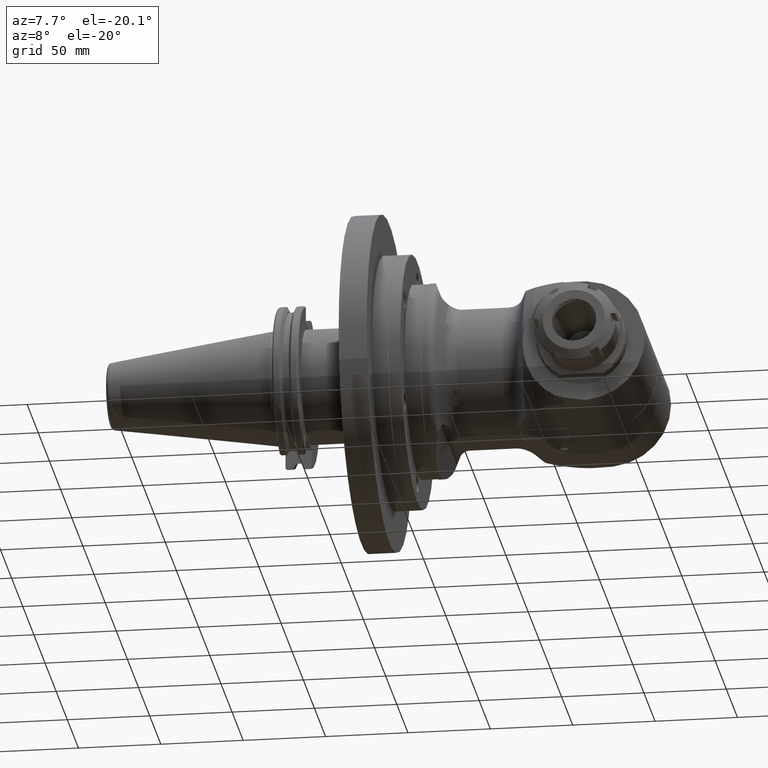
[diagram: clean part render]
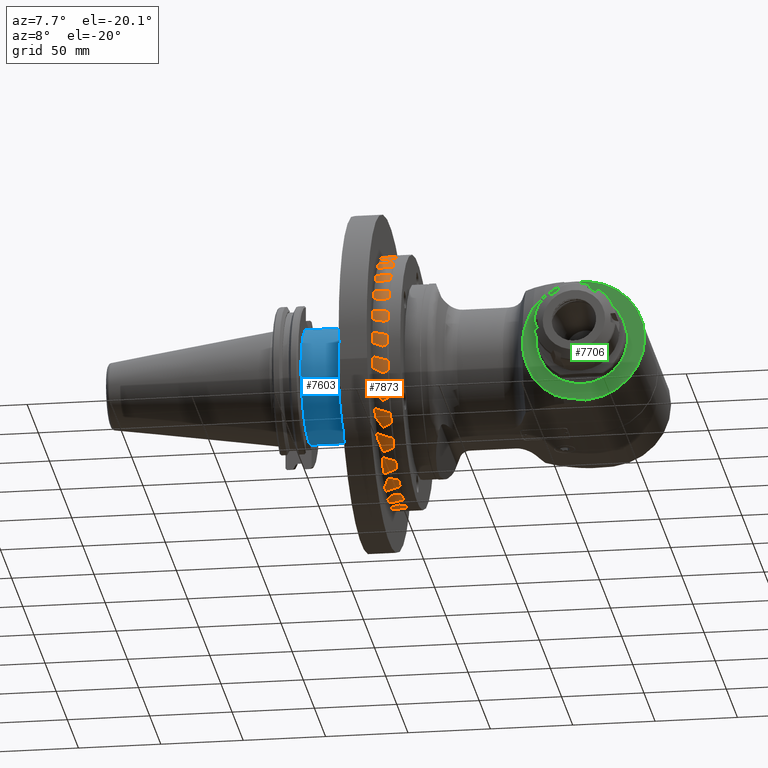
[diagram: same view with three faces highlighted in distinct colors, each labeled with its STEP entity id]
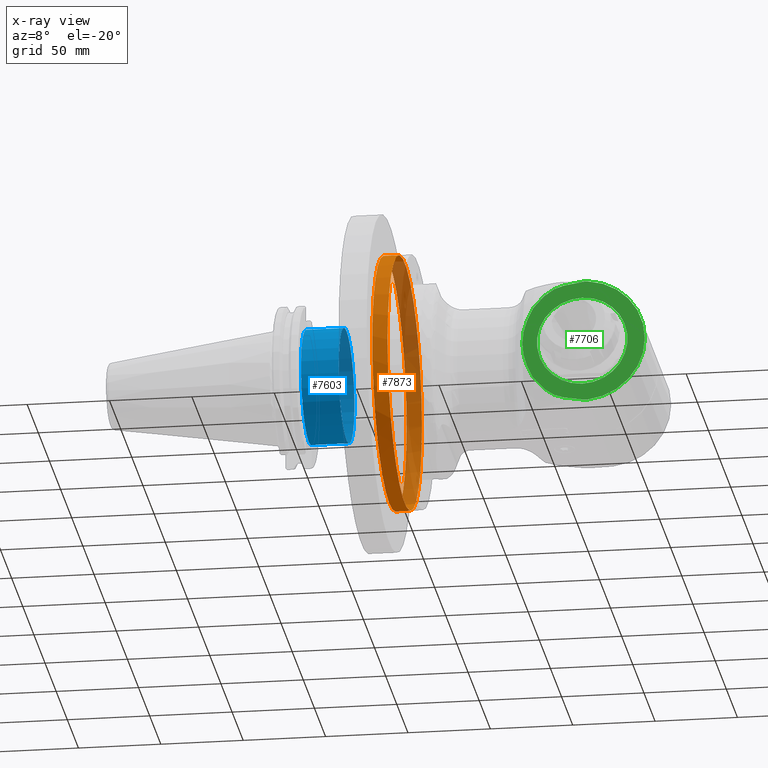
[diagram: x-ray of the same camera — body ghosted, the three highlighted faces saturated]
A machine part, auxiliary view with three faces highlighted in distinct colors.
The next image is the same camera in x-ray (body ghosted, the three faces saturated) — at least one of them is partly hidden behind the body in this view.
Their STEP definitions:

[orange] entity #7873 — the highlighted cylindrical surface (bore or boss wall) has radius 77 mm, axis along (-1, -0, 0).
#314=CYLINDRICAL_SURFACE('',#8676,77.);
#731=FACE_OUTER_BOUND('',#1194,.T.);
#1194=EDGE_LOOP('',(#6990,#6991,#6992,#6993,#6994,#6995,#6996,#6997));
#1603=CIRCLE('',#8675,77.);
#1604=CIRCLE('',#8677,77.);
#1605=CIRCLE('',#8678,77.);
#1606=CIRCLE('',#8679,77.);
#1607=CIRCLE('',#8680,77.);
#1608=CIRCLE('',#8681,77.);
#2187=LINE('',#13725,#2796);
#2796=VECTOR('',#10643,77.);
#3741=VERTEX_POINT('',#13711);
#3742=VERTEX_POINT('',#13715);
#3743=VERTEX_POINT('',#13716);
#3744=VERTEX_POINT('',#13718);
#3745=VERTEX_POINT('',#13720);
#3746=VERTEX_POINT('',#13722);
#4846=EDGE_CURVE('',#3741,#3741,#1603,.T.);
#4848=EDGE_CURVE('',#3742,#3743,#1604,.T.);
#4849=EDGE_CURVE('',#3744,#3742,#1605,.T.);
#4850=EDGE_CURVE('',#3745,#3744,#1606,.T.);
#4851=EDGE_CURVE('',#3746,#3745,#1607,.T.);
#4852=EDGE_CURVE('',#3743,#3746,#1608,.T.);
#4853=EDGE_CURVE('',#3743,#3741,#2187,.T.);
#6990=ORIENTED_EDGE('',*,*,#4848,.F.);
#6991=ORIENTED_EDGE('',*,*,#4849,.F.);
#6992=ORIENTED_EDGE('',*,*,#4850,.F.);
#6993=ORIENTED_EDGE('',*,*,#4851,.F.);
#6994=ORIENTED_EDGE('',*,*,#4852,.F.);
#6995=ORIENTED_EDGE('',*,*,#4853,.T.);
#6996=ORIENTED_EDGE('',*,*,#4846,.F.);
#6997=ORIENTED_EDGE('',*,*,#4853,.F.);
#7873=ADVANCED_FACE('',(#731),#314,.T.);
#8675=AXIS2_PLACEMENT_3D('',#13712,#10628,#10629);
#8676=AXIS2_PLACEMENT_3D('',#13714,#10631,#10632);
#8677=AXIS2_PLACEMENT_3D('',#13717,#10633,#10634);
#8678=AXIS2_PLACEMENT_3D('',#13719,#10635,#10636);
#8679=AXIS2_PLACEMENT_3D('',#13721,#10637,#10638);
#8680=AXIS2_PLACEMENT_3D('',#13723,#10639,#10640);
#8681=AXIS2_PLACEMENT_3D('',#13724,#10641,#10642);
#10628=DIRECTION('center_axis',(1.,0.,0.));
#10629=DIRECTION('ref_axis',(0.,-1.,0.));
#10631=DIRECTION('center_axis',(-1.,0.,0.));
#10632=DIRECTION('ref_axis',(0.,-1.,0.));
#10633=DIRECTION('center_axis',(-1.,0.,0.));
#10634=DIRECTION('ref_axis',(0.,0.0347372650101887,0.999396479091062));
#10635=DIRECTION('center_axis',(-1.,0.,0.));
#10636=DIRECTION('ref_axis',(0.,-0.999396479482274,0.0347372537549791));
#10637=DIRECTION('center_axis',(-1.,0.,0.));
#10638=DIRECTION('ref_axis',(0.,-0.0347372649181487,-0.999396479094261));
#10639=DIRECTION('center_axis',(-1.,0.,0.));
#10640=DIRECTION('ref_axis',(0.,0.999396479482857,-0.0347372537381985));
#10641=DIRECTION('center_axis',(-1.,0.,0.));
#10642=DIRECTION('ref_axis',(0.,0.0347372650101887,0.999396479091062));
#10643=DIRECTION('',(1.,0.,0.));
#13711=CARTESIAN_POINT('',(-115.7,77.,0.));
#13712=CARTESIAN_POINT('Origin',(-115.7,0.,0.));
#13714=CARTESIAN_POINT('Origin',(-120.1,0.,0.));
#13715=CARTESIAN_POINT('',(-125.,2.6756290044641,76.9534990070314));
#13716=CARTESIAN_POINT('',(-125.,77.,-9.42978035343462E-15));
#13717=CARTESIAN_POINT('Origin',(-125.,0.,0.));
#13718=CARTESIAN_POINT('',(-125.,-76.9534991392753,2.67562520351727));
#13719=CARTESIAN_POINT('Origin',(-125.,0.,0.));
#13720=CARTESIAN_POINT('',(-125.,-2.6756290023631,-76.9534990071051));
#13721=CARTESIAN_POINT('Origin',(-125.,0.,0.));
#13722=CARTESIAN_POINT('',(-125.,76.9534991390136,-2.67562521103966));
#13723=CARTESIAN_POINT('Origin',(-125.,0.,0.));
#13724=CARTESIAN_POINT('Origin',(-125.,0.,0.));
#13725=CARTESIAN_POINT('',(-120.1,77.,-9.42978035343462E-15));

[blue] entity #7603 — the highlighted cylindrical surface (bore or boss wall) has radius 34.925 mm, axis along (1, 0, 0).
#251=CYLINDRICAL_SURFACE('',#8136,34.925);
#461=FACE_OUTER_BOUND('',#868,.T.);
#868=EDGE_LOOP('',(#5251,#5252,#5253,#5254));
#1325=CIRCLE('',#8061,34.925);
#1367=CIRCLE('',#8137,34.925);
#1715=LINE('',#11295,#2324);
#2324=VECTOR('',#9083,34.925);
#3040=VERTEX_POINT('',#11118);
#3086=VERTEX_POINT('',#11293);
#3899=EDGE_CURVE('',#3040,#3040,#1325,.T.);
#3973=EDGE_CURVE('',#3086,#3086,#1367,.T.);
#3974=EDGE_CURVE('',#3086,#3040,#1715,.T.);
#5251=ORIENTED_EDGE('',*,*,#3973,.F.);
#5252=ORIENTED_EDGE('',*,*,#3974,.T.);
#5253=ORIENTED_EDGE('',*,*,#3899,.F.);
#5254=ORIENTED_EDGE('',*,*,#3974,.F.);
#7603=ADVANCED_FACE('',(#461),#251,.T.);
#8061=AXIS2_PLACEMENT_3D('',#11119,#8902,#8903);
#8136=AXIS2_PLACEMENT_3D('',#11292,#9079,#9080);
#8137=AXIS2_PLACEMENT_3D('',#11294,#9081,#9082);
#8902=DIRECTION('center_axis',(-1.,0.,0.));
#8903=DIRECTION('ref_axis',(0.,0.,1.));
#9079=DIRECTION('center_axis',(1.,0.,0.));
#9080=DIRECTION('ref_axis',(0.,0.,1.));
#9081=DIRECTION('center_axis',(1.,0.,0.));
#9082=DIRECTION('ref_axis',(0.,0.,-1.));
#9083=DIRECTION('',(-1.,0.,0.));
#11118=CARTESIAN_POINT('',(19.05,0.,-34.925));
#11119=CARTESIAN_POINT('Origin',(19.05,0.,0.));
#11292=CARTESIAN_POINT('Origin',(32.,0.,0.));
#11293=CARTESIAN_POINT('',(42.,0.,-34.925));
#11294=CARTESIAN_POINT('Origin',(42.,0.,0.));
#11295=CARTESIAN_POINT('',(32.,4.27707894602213E-15,-34.925));

[green] entity #7706 — the highlighted planar face has unit normal (-0, 1, 0).
#166=FACE_BOUND('',#983,.T.);
#564=FACE_OUTER_BOUND('',#982,.T.);
#982=EDGE_LOOP('',(#5774,#5775,#5776,#5777,#5778,#5779,#5780,#5781,#5782,
#5783,#5784,#5785,#5786));
#983=EDGE_LOOP('',(#5787));
#1454=CIRCLE('',#8301,38.);
#1474=CIRCLE('',#8352,27.5);
#1789=LINE('',#12059,#2398);
#1799=LINE('',#12099,#2408);
#2398=VECTOR('',#9455,10.);
#2408=VECTOR('',#9497,10.);
#2925=(
BOUNDED_CURVE()
B_SPLINE_CURVE(2,(#12023,#12024,#12025),.UNSPECIFIED.,.F.,.F.)
B_SPLINE_CURVE_WITH_KNOTS((3,3),(7.66377423123892,11.5955866176865),
 .UNSPECIFIED.)
CURVE()
GEOMETRIC_REPRESENTATION_ITEM()
RATIONAL_B_SPLINE_CURVE((1.35306260130723,1.39892913016397,1.39892913016397))
REPRESENTATION_ITEM('')
);
#2926=(
BOUNDED_CURVE()
B_SPLINE_CURVE(2,(#12029,#12030,#12031),.UNSPECIFIED.,.F.,.F.)
B_SPLINE_CURVE_WITH_KNOTS((3,3),(6.33402983461404,7.66823083171025),
 .UNSPECIFIED.)
CURVE()
GEOMETRIC_REPRESENTATION_ITEM()
RATIONAL_B_SPLINE_CURVE((1.04614733757321,1.04271820737112,1.03579692834844))
REPRESENTATION_ITEM('')
);
#2927=(
BOUNDED_CURVE()
B_SPLINE_CURVE(2,(#12035,#12036,#12037),.UNSPECIFIED.,.F.,.F.)
B_SPLINE_CURVE_WITH_KNOTS((3,3),(5.31658742413015,6.20123731357054),
 .UNSPECIFIED.)
CURVE()
GEOMETRIC_REPRESENTATION_ITEM()
RATIONAL_B_SPLINE_CURVE((1.02507283341865,1.02410105275046,1.02211168134373))
REPRESENTATION_ITEM('')
);
#2928=(
BOUNDED_CURVE()
B_SPLINE_CURVE(2,(#12041,#12042,#12043),.UNSPECIFIED.,.F.,.F.)
B_SPLINE_CURVE_WITH_KNOTS((3,3),(4.66535243178527,5.31813125282803),
 .UNSPECIFIED.)
CURVE()
GEOMETRIC_REPRESENTATION_ITEM()
RATIONAL_B_SPLINE_CURVE((1.00767575282678,1.00746954792995,1.00705536430051))
REPRESENTATION_ITEM('')
);
#2929=(
BOUNDED_CURVE()
B_SPLINE_CURVE(2,(#12047,#12048,#12049),.UNSPECIFIED.,.F.,.F.)
B_SPLINE_CURVE_WITH_KNOTS((3,3),(3.43445392875505,4.800957783181),
 .UNSPECIFIED.)
CURVE()
GEOMETRIC_REPRESENTATION_ITEM()
RATIONAL_B_SPLINE_CURVE((1.00197720157034,1.0020564521463,1.00188575798696))
REPRESENTATION_ITEM('')
);
#2943=(
BOUNDED_CURVE()
B_SPLINE_CURVE(2,(#12206,#12207,#12208),.UNSPECIFIED.,.F.,.F.)
B_SPLINE_CURVE_WITH_KNOTS((3,3),(2.93451137545031,4.30101522987674),
 .UNSPECIFIED.)
CURVE()
GEOMETRIC_REPRESENTATION_ITEM()
RATIONAL_B_SPLINE_CURVE((1.00188575798696,1.0020564521463,1.00197720157034))
REPRESENTATION_ITEM('')
);
#2944=(
BOUNDED_CURVE()
B_SPLINE_CURVE(2,(#12212,#12213,#12214),.UNSPECIFIED.,.F.,.F.)
B_SPLINE_CURVE_WITH_KNOTS((3,3),(2.71815097666377,3.37092979770638),
 .UNSPECIFIED.)
CURVE()
GEOMETRIC_REPRESENTATION_ITEM()
RATIONAL_B_SPLINE_CURVE((1.00705536430051,1.00746954792995,1.00767575282678))
REPRESENTATION_ITEM('')
);
#2945=(
BOUNDED_CURVE()
B_SPLINE_CURVE(2,(#12218,#12219,#12220),.UNSPECIFIED.,.F.,.F.)
B_SPLINE_CURVE_WITH_KNOTS((3,3),(2.74228838967073,3.62693827911546),
 .UNSPECIFIED.)
CURVE()
GEOMETRIC_REPRESENTATION_ITEM()
RATIONAL_B_SPLINE_CURVE((1.02211168134371,1.02410105275046,1.02507283341865))
REPRESENTATION_ITEM('')
);
#2946=(
BOUNDED_CURVE()
B_SPLINE_CURVE(2,(#12224,#12225,#12226),.UNSPECIFIED.,.F.,.F.)
B_SPLINE_CURVE_WITH_KNOTS((3,3),(2.3795802915178,3.71378128861126),
 .UNSPECIFIED.)
CURVE()
GEOMETRIC_REPRESENTATION_ITEM()
RATIONAL_B_SPLINE_CURVE((1.03579692834844,1.04271820737111,1.0461473375732))
REPRESENTATION_ITEM('')
);
#2947=(
BOUNDED_CURVE()
B_SPLINE_CURVE(2,(#12229,#12230,#12231),.UNSPECIFIED.,.F.,.F.)
B_SPLINE_CURVE_WITH_KNOTS((3,3),(11.5955866176865,15.527399004134),
 .UNSPECIFIED.)
CURVE()
GEOMETRIC_REPRESENTATION_ITEM()
RATIONAL_B_SPLINE_CURVE((1.39892913016397,1.39892913016397,1.35306260130723))
REPRESENTATION_ITEM('')
);
#3238=VERTEX_POINT('',#12018);
#3239=VERTEX_POINT('',#12022);
#3240=VERTEX_POINT('',#12028);
#3241=VERTEX_POINT('',#12034);
#3242=VERTEX_POINT('',#12040);
#3243=VERTEX_POINT('',#12046);
#3245=VERTEX_POINT('',#12058);
#3254=VERTEX_POINT('',#12089);
#3256=VERTEX_POINT('',#12098);
#3273=VERTEX_POINT('',#12205);
#3274=VERTEX_POINT('',#12211);
#3275=VERTEX_POINT('',#12217);
#3276=VERTEX_POINT('',#12223);
#3277=VERTEX_POINT('',#12233);
#4176=EDGE_CURVE('',#3239,#3238,#2925,.T.);
#4178=EDGE_CURVE('',#3240,#3239,#2926,.T.);
#4180=EDGE_CURVE('',#3241,#3240,#2927,.T.);
#4182=EDGE_CURVE('',#3242,#3241,#2928,.T.);
#4184=EDGE_CURVE('',#3243,#3242,#2929,.T.);
#4187=EDGE_CURVE('',#3245,#3243,#1789,.T.);
#4203=EDGE_CURVE('',#3254,#3245,#1454,.T.);
#4207=EDGE_CURVE('',#3256,#3254,#1799,.T.);
#4248=EDGE_CURVE('',#3273,#3256,#2943,.T.);
#4250=EDGE_CURVE('',#3274,#3273,#2944,.T.);
#4252=EDGE_CURVE('',#3275,#3274,#2945,.T.);
#4254=EDGE_CURVE('',#3276,#3275,#2946,.T.);
#4256=EDGE_CURVE('',#3238,#3276,#2947,.T.);
#4257=EDGE_CURVE('',#3277,#3277,#1474,.T.);
#5774=ORIENTED_EDGE('',*,*,#4252,.T.);
#5775=ORIENTED_EDGE('',*,*,#4250,.T.);
#5776=ORIENTED_EDGE('',*,*,#4248,.T.);
#5777=ORIENTED_EDGE('',*,*,#4207,.T.);
#5778=ORIENTED_EDGE('',*,*,#4203,.T.);
#5779=ORIENTED_EDGE('',*,*,#4187,.T.);
#5780=ORIENTED_EDGE('',*,*,#4184,.T.);
#5781=ORIENTED_EDGE('',*,*,#4182,.T.);
#5782=ORIENTED_EDGE('',*,*,#4180,.T.);
#5783=ORIENTED_EDGE('',*,*,#4178,.T.);
#5784=ORIENTED_EDGE('',*,*,#4176,.T.);
#5785=ORIENTED_EDGE('',*,*,#4256,.T.);
#5786=ORIENTED_EDGE('',*,*,#4254,.T.);
#5787=ORIENTED_EDGE('',*,*,#4257,.T.);
#7422=PLANE('',#8351);
#7706=ADVANCED_FACE('',(#564,#166),#7422,.F.);
#8301=AXIS2_PLACEMENT_3D('',#12090,#9491,#9492);
#8351=AXIS2_PLACEMENT_3D('',#12232,#9607,#9608);
#8352=AXIS2_PLACEMENT_3D('',#12234,#9609,#9610);
#9455=DIRECTION('',(-0.996194698091745,0.,0.0871557427476639));
#9491=DIRECTION('center_axis',(0.,-1.,0.));
#9492=DIRECTION('ref_axis',(1.,0.,0.));
#9497=DIRECTION('',(0.996194698091745,0.,0.0871557427476639));
#9607=DIRECTION('center_axis',(0.,1.,0.));
#9608=DIRECTION('ref_axis',(0.,0.,-1.));
#9609=DIRECTION('center_axis',(0.,1.,0.));
#9610=DIRECTION('ref_axis',(0.,0.,1.));
#12018=CARTESIAN_POINT('',(-36.33356727372,-59.,5.109128986719E-14));
#12022=CARTESIAN_POINT('',(-29.93222915756,-59.,22.09072203437));
#12023=CARTESIAN_POINT('Ctrl Pts',(-29.9322291577152,-59.,22.0907220340942));
#12024=CARTESIAN_POINT('Ctrl Pts',(-36.3335672737221,-59.,10.6832180328903));
#12025=CARTESIAN_POINT('Ctrl Pts',(-36.3335672737221,-59.,2.53959518191181E-14));
#12028=CARTESIAN_POINT('',(-23.1941141656069,-58.9999992310959,29.5804042855511));
#12029=CARTESIAN_POINT('Ctrl Pts',(-23.1941138002888,-59.,29.5804039178051));
#12030=CARTESIAN_POINT('Ctrl Pts',(-27.0515132712685,-59.,25.748473588291));
#12031=CARTESIAN_POINT('Ctrl Pts',(-29.9322291575599,-59.,22.0907220343699));
#12034=CARTESIAN_POINT('',(-17.0387513415083,-58.9999999586063,33.8082832713514));
#12035=CARTESIAN_POINT('Ctrl Pts',(-17.0387513469458,-59.,33.8082832796718));
#12036=CARTESIAN_POINT('Ctrl Pts',(-20.3217046407363,-59.,31.6627930677825));
#12037=CARTESIAN_POINT('Ctrl Pts',(-23.1941098618538,-59.,29.5804054213108));
#12040=CARTESIAN_POINT('',(-11.3674698918687,-58.9999999973162,35.7770876557377));
#12041=CARTESIAN_POINT('Ctrl Pts',(-11.3674698922537,-59.,35.7770876568699));
#12042=CARTESIAN_POINT('Ctrl Pts',(-14.2833402187743,-59.,34.7855000662078));
#12043=CARTESIAN_POINT('Ctrl Pts',(-17.0387509172184,-59.,33.8082833081776));
#12046=CARTESIAN_POINT('',(1.94584509715085,-59.0000000004343,37.9749144396723));
#12047=CARTESIAN_POINT('Ctrl Pts',(1.94584509169999,-59.,37.9749144401492));
#12048=CARTESIAN_POINT('Ctrl Pts',(-4.909182313041,-59.,36.8668034983102));
#12049=CARTESIAN_POINT('Ctrl Pts',(-11.3674698421911,-59.,35.7770876568279));
#12058=CARTESIAN_POINT('',(3.31191822440001,-59.,37.85539852749));
#12059=CARTESIAN_POINT('',(-34.1506550532856,-59.,41.1329489957975));
#12089=CARTESIAN_POINT('',(3.31191822440001,-59.,-37.85539852749));
#12090=CARTESIAN_POINT('Origin',(0.,-59.,0.));
#12098=CARTESIAN_POINT('',(1.94584509224752,-59.,-37.9749144401008));
#12099=CARTESIAN_POINT('',(-19.8529494975548,-59.,-39.8820618452388));
#12205=CARTESIAN_POINT('',(-11.3674698918697,-58.9999999973163,-35.7770876557367));
#12206=CARTESIAN_POINT('Ctrl Pts',(-11.3674698421929,-59.,-35.7770876568263));
#12207=CARTESIAN_POINT('Ctrl Pts',(-4.909182313041,-59.,-36.866803498309));
#12208=CARTESIAN_POINT('Ctrl Pts',(1.94584509170301,-59.,-37.9749144401484));
#12211=CARTESIAN_POINT('',(-17.0387513415081,-58.9999999586063,-33.8082832713515));
#12212=CARTESIAN_POINT('Ctrl Pts',(-17.0387509172182,-59.,-33.8082833081777));
#12213=CARTESIAN_POINT('Ctrl Pts',(-14.2833402187747,-59.,-34.7855000662077));
#12214=CARTESIAN_POINT('Ctrl Pts',(-11.3674698922549,-59.,-35.7770876568695));
#12217=CARTESIAN_POINT('',(-23.1941141656216,-58.9999992310983,-29.5804042855343));
#12218=CARTESIAN_POINT('Ctrl Pts',(-23.1941098618819,-59.,-29.5804054212904));
#12219=CARTESIAN_POINT('Ctrl Pts',(-20.3217046407523,-59.,-31.6627930677721));
#12220=CARTESIAN_POINT('Ctrl Pts',(-17.0387513469457,-59.,-33.8082832796718));
#12223=CARTESIAN_POINT('',(-29.93222915756,-59.,-22.09072203437));
#12224=CARTESIAN_POINT('Ctrl Pts',(-29.9322291575599,-59.,-22.0907220343699));
#12225=CARTESIAN_POINT('Ctrl Pts',(-27.0515132712744,-59.,-25.7484735882836));
#12226=CARTESIAN_POINT('Ctrl Pts',(-23.1941138003046,-59.,-29.5804039177894));
#12229=CARTESIAN_POINT('Ctrl Pts',(-36.3335672737221,-59.,2.53959518191181E-14));
#12230=CARTESIAN_POINT('Ctrl Pts',(-36.3335672737221,-59.,-10.6832180328902));
#12231=CARTESIAN_POINT('Ctrl Pts',(-29.9322291577152,-59.,-22.0907220340942));
#12232=CARTESIAN_POINT('Origin',(-54.5000024,-59.,89.333252));
#12233=CARTESIAN_POINT('',(0.,-59.,-27.5));
#12234=CARTESIAN_POINT('Origin',(0.,-59.,0.));